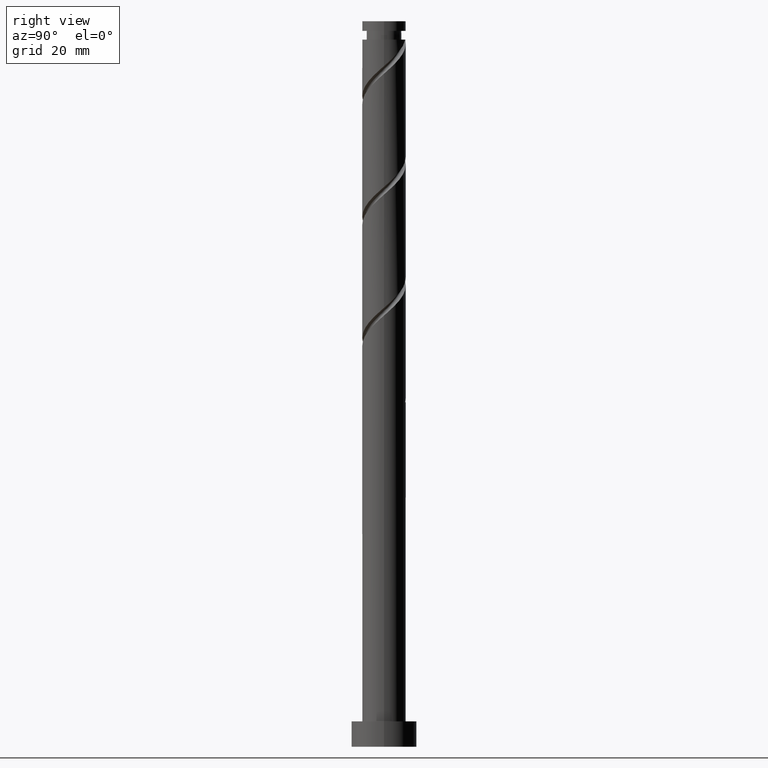
[diagram: clean part render]
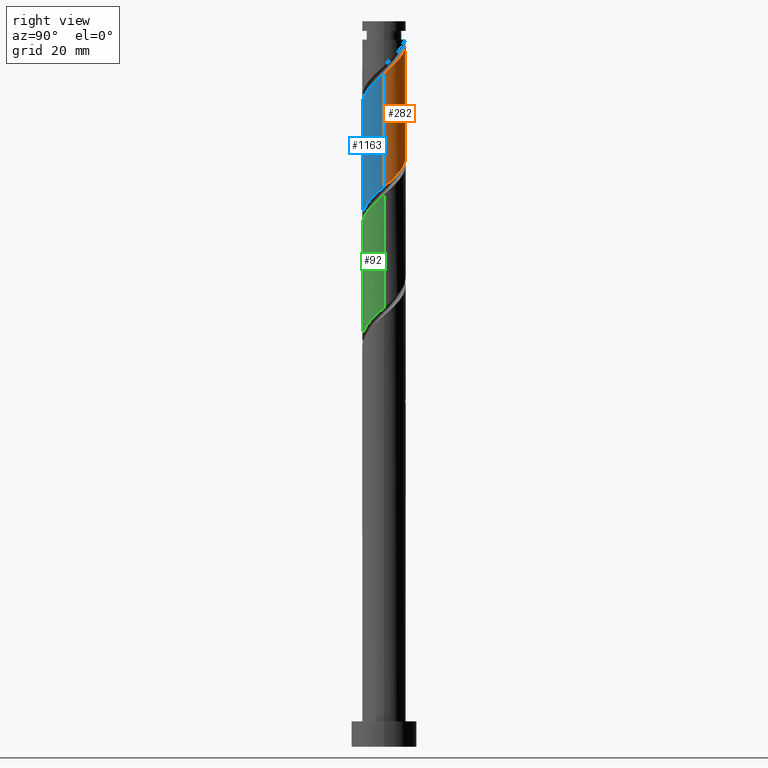
[diagram: same view with three faces highlighted in distinct colors, each labeled with its STEP entity id]
A machine part, right view with three faces highlighted in distinct colors.
Their STEP definitions:

[orange] entity #282 — the highlighted cylindrical surface (edge-blend (fillet) strip) has radius 6 mm, axis along (-0, -0, -1).
#13 = DIRECTION ( 'NONE',  ( -1.000000000000000000, 0.000000000000000000, 0.000000000000000000 ) ) ;
#48 = CARTESIAN_POINT ( 'NONE',  ( 5.370617820546605081, 2.675156860004169523, 187.9871779658099342 ) ) ;
#54 = CARTESIAN_POINT ( 'NONE',  ( 0.000000000000000000, 0.000000000000000000, 200.0000000000000000 ) ) ;
#56 = CARTESIAN_POINT ( 'NONE',  ( -1.193984924527897284, 5.879999999999955484, 194.9316224102543629 ) ) ;
#70 = CARTESIAN_POINT ( 'NONE',  ( 3.974021276376848988, 4.495236911988524930, 158.8205112991432770 ) ) ;
#75 =( BOUNDED_CURVE ( )  B_SPLINE_CURVE ( 2, ( #552, #433, #461, #715, #48, #990, #317, #560, #184, #1523, #576, #323, #308, #848, #56 ),
 .UNSPECIFIED., .F., .T. ) 
 B_SPLINE_CURVE_WITH_KNOTS ( ( 3, 2, 2, 2, 2, 2, 2, 3 ),
 ( 0.6795317669814462391, 0.6875000000000000000, 0.6979166666666667407, 0.7083333333333332593, 0.7187499999999998890, 0.7291666666666666297, 0.7395833333333331483, 0.7499999999999998890 ),
 .UNSPECIFIED. ) 
 CURVE ( )  GEOMETRIC_REPRESENTATION_ITEM ( )  RATIONAL_B_SPLINE_CURVE ( ( 0.9062941362546420576, 0.9031415850403462509, 0.9090909090909216062, 0.9013135103398400849, 0.9090909090909216062, 0.9013135103398400849, 0.9090909090909216062, 0.9013135103398400849, 0.9090909090909216062, 0.9013135103398400849, 0.9090909090909216062, 0.9013135103398400849, 0.9090909090909216062, 0.9013135103398400849, 0.9090909090909216062 ) ) 
 REPRESENTATION_ITEM ( '' )  );
#79 = CARTESIAN_POINT ( 'NONE',  ( 5.002062710145118274, 3.313513036608680462, 157.4316224102544197 ) ) ;
#184 = CARTESIAN_POINT ( 'NONE',  ( 3.313513036608688456, 5.002062710145122715, 190.7649557435876773 ) ) ;
#221 = CARTESIAN_POINT ( 'NONE',  ( 5.940148695829896575, 1.156978459517005176, 155.3482890769209916 ) ) ;
#229 = CARTESIAN_POINT ( 'NONE',  ( -5.722808902604195502, 1.968101610341833396, 169.2371779658099342 ) ) ;
#237 = CARTESIAN_POINT ( 'NONE',  ( 1.193984924527947022, 5.879999999999999005, 161.5982890769210485 ) ) ;
#248 = CARTESIAN_POINT ( 'NONE',  ( 6.000000000000009770, -2.003807115445096465E-15, 185.5347224217109670 ) ) ;
#282 = ADVANCED_FACE ( 'NONE', ( #313 ), #590, .T. ) ;
#308 = CARTESIAN_POINT ( 'NONE',  ( 0.3685551104014822554, 5.988669896612860200, 193.5427335213654771 ) ) ;
#313 = FACE_OUTER_BOUND ( 'NONE', #366, .T. ) ;
#317 = CARTESIAN_POINT ( 'NONE',  ( 4.495236911988538253, 3.974021276376848988, 189.3760668546988484 ) ) ;
#323 = CARTESIAN_POINT ( 'NONE',  ( 1.156978459517015612, 5.940148695829906345, 192.8482890769210485 ) ) ;
#333 = CARTESIAN_POINT ( 'NONE',  ( -5.018426738488988903, 3.382212109666502986, 167.8482890769209916 ) ) ;
#338 = CARTESIAN_POINT ( 'NONE',  ( -4.495236911988526707, 3.974021276376847212, 167.1538446324766198 ) ) ;
#359 = CARTESIAN_POINT ( 'NONE',  ( -1.193984924527897284, 5.879999999999955484, 194.9316224102543629 ) ) ;
#366 = EDGE_LOOP ( 'NONE', ( #1327, #1231, #1485, #790, #1320 ) ) ;
#386 = VECTOR ( 'NONE', #1216, 1000.000000000000000 ) ;
#433 = CARTESIAN_POINT ( 'NONE',  ( 6.000000000000010658, 0.6030226891555244828, 186.0681487909002385 ) ) ;
#461 = CARTESIAN_POINT ( 'NONE',  ( 5.880000000000010552, 1.193984924527945468, 186.5982890769210485 ) ) ;
#472 = CARTESIAN_POINT ( 'NONE',  ( -6.000000000000001776, -3.768353679792297574E-15, 170.9951890654644444 ) ) ;
#476 = CARTESIAN_POINT ( 'NONE',  ( -6.000000000000000888, 0.6030226891555308111, 170.4617626962751160 ) ) ;
#552 = CARTESIAN_POINT ( 'NONE',  ( 6.000000000000009770, -2.003807115445096465E-15, 185.5347224217109954 ) ) ;
#560 = CARTESIAN_POINT ( 'NONE',  ( 3.972047085488075169, 4.565830443087191881, 190.0705112991432770 ) ) ;
#564 = VERTEX_POINT ( 'NONE', #472 ) ;
#576 = CARTESIAN_POINT ( 'NONE',  ( 1.905978723623160231, 5.689221836516480835, 192.1538446324766198 ) ) ;
#581 = DIRECTION ( 'NONE',  ( -1.000000000000000000, 0.000000000000000000, 0.000000000000000000 ) ) ;
#585 = LINE ( 'NONE', #1658, #661 ) ;
#590 = CYLINDRICAL_SURFACE ( 'NONE', #1114, 6.000000000000000888 ) ;
#599 = CARTESIAN_POINT ( 'NONE',  ( 4.565830443087190105, 3.972047085488063178, 158.1260668546987915 ) ) ;
#610 = CARTESIAN_POINT ( 'NONE',  ( 5.438294977203047331, 2.654978987729293305, 156.7371779658098490 ) ) ;
#661 = VECTOR ( 'NONE', #1378, 1000.000000000000000 ) ;
#669 = CARTESIAN_POINT ( 'NONE',  ( 6.000000000000000888, 7.347880794884120722E-16, 200.0000000000000000 ) ) ;
#715 = CARTESIAN_POINT ( 'NONE',  ( 5.722808902604208825, 1.968101610341833396, 187.2927335213655056 ) ) ;
#726 = EDGE_CURVE ( 'NONE', #564, #1438, #1472, .T. ) ;
#733 = CARTESIAN_POINT ( 'NONE',  ( 3.382212109666506983, 5.018426738488987127, 159.5149557435876773 ) ) ;
#743 = CARTESIAN_POINT ( 'NONE',  ( -0.3685551104014755386, 5.988669896612849541, 162.9871779658099342 ) ) ;
#768 = EDGE_CURVE ( 'NONE', #770, #1335, #1565, .T. ) ;
#770 = VERTEX_POINT ( 'NONE', #1745 ) ;
#785 = CARTESIAN_POINT ( 'NONE',  ( 6.000000000000001776, 8.583472270638011185E-15, 154.3285223987978156 ) ) ;
#790 = ORIENTED_EDGE ( 'NONE', *, *, #1122, .F. ) ;
#848 = CARTESIAN_POINT ( 'NONE',  ( -0.4198682387140428296, 6.037191097395812278, 194.2371779658099342 ) ) ;
#865 = AXIS2_PLACEMENT_3D ( 'NONE', #926, #1199, #13 ) ;
#872 = EDGE_CURVE ( 'NONE', #922, #1438, #1360, .T. ) ;
#883 = CARTESIAN_POINT ( 'NONE',  ( -1.905978723623153348, 5.689221836516471953, 164.3760668546988200 ) ) ;
#895 = CARTESIAN_POINT ( 'NONE',  ( 5.689221836516475506, 1.905978723623149795, 156.0427335213655340 ) ) ;
#922 = VERTEX_POINT ( 'NONE', #248 ) ;
#926 = CARTESIAN_POINT ( 'NONE',  ( 0.000000000000000000, 0.000000000000000000, 194.9316224102543913 ) ) ;
#990 = CARTESIAN_POINT ( 'NONE',  ( 5.018426738489001337, 3.382212109666505206, 188.6816224102543345 ) ) ;
#1008 = CARTESIAN_POINT ( 'NONE',  ( 2.675156860004173520, 5.370617820546592647, 160.2094001880321628 ) ) ;
#1035 = CARTESIAN_POINT ( 'NONE',  ( -5.370617820546593535, 2.675156860004169967, 168.5427335213654771 ) ) ;
#1044 = CARTESIAN_POINT ( 'NONE',  ( -6.000000000000001776, -3.768353679792297574E-15, 170.9951890654644444 ) ) ;
#1090 = EDGE_CURVE ( 'NONE', #922, #1335, #75, .T. ) ;
#1114 = AXIS2_PLACEMENT_3D ( 'NONE', #54, #1669, #581 ) ;
#1122 = EDGE_CURVE ( 'NONE', #770, #564, #585, .T. ) ;
#1191 = CARTESIAN_POINT ( 'NONE',  ( 1.968101610341838503, 5.722808902604194614, 160.9038446324765630 ) ) ;
#1199 = DIRECTION ( 'NONE',  ( -0.000000000000000000, -0.000000000000000000, -1.000000000000000000 ) ) ;
#1216 = DIRECTION ( 'NONE',  ( -0.000000000000000000, -0.000000000000000000, -1.000000000000000000 ) ) ;
#1231 = ORIENTED_EDGE ( 'NONE', *, *, #872, .T. ) ;
#1294 = CARTESIAN_POINT ( 'NONE',  ( 0.4198682387140577621, 6.037191097395801620, 162.2927335213654487 ) ) ;
#1320 = ORIENTED_EDGE ( 'NONE', *, *, #768, .T. ) ;
#1327 = ORIENTED_EDGE ( 'NONE', *, *, #1090, .F. ) ;
#1335 = VERTEX_POINT ( 'NONE', #359 ) ;
#1360 = LINE ( 'NONE', #669, #386 ) ;
#1370 = CARTESIAN_POINT ( 'NONE',  ( 6.000000000000000888, 0.1844517099460428189, 154.4916860868259789 ) ) ;
#1378 = DIRECTION ( 'NONE',  ( -0.000000000000000000, -0.000000000000000000, -1.000000000000000000 ) ) ;
#1438 = VERTEX_POINT ( 'NONE', #785 ) ;
#1472 =( BOUNDED_CURVE ( )  B_SPLINE_CURVE ( 2, ( #1044, #476, #1578, #229, #1035, #333, #338, #1694, #1704, #1570, #883, #1550, #743, #1294, #237, #1191, #1008, #733, #70, #599, #79, #610, #895, #221, #1725, #1370, #1612 ),
 .UNSPECIFIED., .F., .T. ) 
 B_SPLINE_CURVE_WITH_KNOTS ( ( 3, 2, 2, 2, 2, 2, 2, 2, 2, 2, 2, 2, 2, 3 ),
 ( 0.4295317669814462946, 0.4375000000000000000, 0.4479166666666666852, 0.4583333333333333148, 0.4687500000000000000, 0.4791666666666666852, 0.4895833333333333148, 0.5000000000000000000, 0.5104166666666666297, 0.5208333333333333703, 0.5312500000000000000, 0.5416666666666666297, 0.5520833333333333703, 0.5545317669814462391 ),
 .UNSPECIFIED. ) 
 CURVE ( )  GEOMETRIC_REPRESENTATION_ITEM ( )  RATIONAL_B_SPLINE_CURVE ( ( 0.9062941362546359514, 0.9031415850403402557, 0.9090909090909153889, 0.9013135103398340897, 0.9090909090909153889, 0.9013135103398340897, 0.9090909090909153889, 0.9013135103398340897, 0.9090909090909153889, 0.9013135103398340897, 0.9090909090909153889, 0.9013135103398340897, 0.9090909090909153889, 0.9013135103398340897, 0.9090909090909153889, 0.9013135103398340897, 0.9090909090909153889, 0.9013135103398340897, 0.9090909090909153889, 0.9013135103398340897, 0.9090909090909153889, 0.9013135103398340897, 0.9090909090909153889, 0.9013135103398340897, 0.9090909090909153889, 0.9072628343904092230, 0.9062941362546358404 ) ) 
 REPRESENTATION_ITEM ( '' )  );
#1485 = ORIENTED_EDGE ( 'NONE', *, *, #726, .F. ) ;
#1523 = CARTESIAN_POINT ( 'NONE',  ( 2.654978987729306183, 5.438294977203054437, 191.4594001880321343 ) ) ;
#1550 = CARTESIAN_POINT ( 'NONE',  ( -1.156978459517009172, 5.940148695829896575, 163.6816224102543629 ) ) ;
#1565 = CIRCLE ( 'NONE', #865, 5.999999999999990230 ) ;
#1570 = CARTESIAN_POINT ( 'NONE',  ( -2.654978987729297302, 5.438294977203044667, 165.0705112991432770 ) ) ;
#1578 = CARTESIAN_POINT ( 'NONE',  ( -5.879999999999999005, 1.193984924527945912, 169.9316224102544197 ) ) ;
#1612 = CARTESIAN_POINT ( 'NONE',  ( 6.000000000000001776, 8.583472270638011185E-15, 154.3285223987978156 ) ) ;
#1658 = CARTESIAN_POINT ( 'NONE',  ( -6.000000000000000888, 0.000000000000000000, 200.0000000000000000 ) ) ;
#1669 = DIRECTION ( 'NONE',  ( -0.000000000000000000, -0.000000000000000000, -1.000000000000000000 ) ) ;
#1694 = CARTESIAN_POINT ( 'NONE',  ( -3.972047085488064511, 4.565830443087188328, 166.4594001880321343 ) ) ;
#1704 = CARTESIAN_POINT ( 'NONE',  ( -3.313513036608681794, 5.002062710145118274, 165.7649557435877341 ) ) ;
#1725 = CARTESIAN_POINT ( 'NONE',  ( 5.988669896612849541, 0.3685551104014728740, 154.6538446324766198 ) ) ;
#1745 = CARTESIAN_POINT ( 'NONE',  ( -5.999999999999990230, 0.000000000000000000, 194.9316224102543913 ) ) ;

[blue] entity #1163 — the highlighted cylindrical surface (edge-blend (fillet) strip) has radius 6 mm, axis along (-0, -0, -1).
#11 = LINE ( 'NONE', #959, #1742 ) ;
#22 = CARTESIAN_POINT ( 'NONE',  ( -6.000000000000001776, 6.609572724080141778E-15, 137.6618557321311300 ) ) ;
#25 = CARTESIAN_POINT ( 'NONE',  ( 3.974021276376850764, -4.495236911988536477, 181.0427335213655056 ) ) ;
#78 = CARTESIAN_POINT ( 'NONE',  ( 1.905978723623152016, -5.689221836516472841, 147.7094001880322196 ) ) ;
#86 = CARTESIAN_POINT ( 'NONE',  ( 1.156978459517005398, -5.940148695829896575, 147.0149557435876773 ) ) ;
#97 = CARTESIAN_POINT ( 'NONE',  ( -1.968101610341835617, -5.722808902604195502, 144.2371779658099058 ) ) ;
#195 = CARTESIAN_POINT ( 'NONE',  ( 3.382212109666505206, -5.018426738489001337, 180.3482890769209632 ) ) ;
#199 = CARTESIAN_POINT ( 'NONE',  ( -5.988669896612849541, -0.3685551104014749835, 137.9871779658099626 ) ) ;
#205 = CARTESIAN_POINT ( 'NONE',  ( 6.000000000000010658, -0.1844517099460451781, 185.3715587336828605 ) ) ;
#219 = CARTESIAN_POINT ( 'NONE',  ( 0.3685551104014730406, -5.988669896612849541, 146.3205112991431918 ) ) ;
#225 = ORIENTED_EDGE ( 'NONE', *, *, #1247, .F. ) ;
#228 = CARTESIAN_POINT ( 'NONE',  ( -5.689221836516471953, -1.905978723623152238, 139.3760668546987915 ) ) ;
#235 = CARTESIAN_POINT ( 'NONE',  ( -6.000000000000009770, -1.764546564347174682E-15, 168.8680557550443098 ) ) ;
#248 = CARTESIAN_POINT ( 'NONE',  ( 6.000000000000009770, -2.003807115445096465E-15, 185.5347224217109670 ) ) ;
#266 = CARTESIAN_POINT ( 'NONE',  ( -4.495236911988534700, -3.974021276376850764, 172.7094001880321912 ) ) ;
#284 = CARTESIAN_POINT ( 'NONE',  ( -1.905978723623160009, -5.689221836516481723, 175.4871779658099626 ) ) ;
#293 = CARTESIAN_POINT ( 'NONE',  ( 5.689221836516481723, -1.905978723623160231, 183.8205112991433055 ) ) ;
#302 = CARTESIAN_POINT ( 'NONE',  ( 2.675156860004169967, -5.370617820546605081, 179.6538446324765914 ) ) ;
#314 =( BOUNDED_CURVE ( )  B_SPLINE_CURVE ( 2, ( #691, #1614, #1728, #1057, #1334, #662, #266, #810, #1097, #1502, #284, #1201, #1068, #1604, #396, #405, #302, #195, #25, #974, #1652, #1511, #293, #839, #1037, #205, #351 ),
 .UNSPECIFIED., .F., .T. ) 
 B_SPLINE_CURVE_WITH_KNOTS ( ( 3, 2, 2, 2, 2, 2, 2, 2, 2, 2, 2, 2, 2, 3 ),
 ( 0.5545317669814462391, 0.5625000000000000000, 0.5729166666666667407, 0.5833333333333332593, 0.5937500000000000000, 0.6041666666666667407, 0.6145833333333332593, 0.6250000000000000000, 0.6354166666666667407, 0.6458333333333332593, 0.6562500000000000000, 0.6666666666666667407, 0.6770833333333332593, 0.6795317669814462391 ),
 .UNSPECIFIED. ) 
 CURVE ( )  GEOMETRIC_REPRESENTATION_ITEM ( )  RATIONAL_B_SPLINE_CURVE ( ( 0.9062941362546420576, 0.9031415850403462509, 0.9090909090909216062, 0.9013135103398400849, 0.9090909090909216062, 0.9013135103398400849, 0.9090909090909216062, 0.9013135103398400849, 0.9090909090909216062, 0.9013135103398400849, 0.9090909090909216062, 0.9013135103398400849, 0.9090909090909216062, 0.9013135103398400849, 0.9090909090909216062, 0.9013135103398400849, 0.9090909090909216062, 0.9013135103398400849, 0.9090909090909216062, 0.9013135103398400849, 0.9090909090909216062, 0.9013135103398400849, 0.9090909090909216062, 0.9013135103398400849, 0.9090909090909216062, 0.9072628343904154402, 0.9062941362546420576 ) ) 
 REPRESENTATION_ITEM ( '' )  );
#324 = AXIS2_PLACEMENT_3D ( 'NONE', #1135, #1667, #867 ) ;
#332 = CARTESIAN_POINT ( 'NONE',  ( 5.018426738488987127, -3.382212109666506095, 151.1816224102543345 ) ) ;
#351 = CARTESIAN_POINT ( 'NONE',  ( 6.000000000000009770, -2.003807115445096465E-15, 185.5347224217109954 ) ) ;
#386 = VECTOR ( 'NONE', #1216, 1000.000000000000000 ) ;
#396 = CARTESIAN_POINT ( 'NONE',  ( 1.193984924527945912, -5.880000000000010552, 178.2649557435877341 ) ) ;
#405 = CARTESIAN_POINT ( 'NONE',  ( 1.968101610341834062, -5.722808902604208825, 178.9594001880321628 ) ) ;
#427 = FACE_OUTER_BOUND ( 'NONE', #491, .T. ) ;
#468 = EDGE_CURVE ( 'NONE', #1642, #922, #314, .T. ) ;
#475 = CARTESIAN_POINT ( 'NONE',  ( 6.000000000000002665, -0.6030226891555243718, 153.7950960296085157 ) ) ;
#491 = EDGE_LOOP ( 'NONE', ( #940, #1077, #772, #225 ) ) ;
#608 = CARTESIAN_POINT ( 'NONE',  ( 5.879999999999999005, -1.193984924527946356, 153.2649557435877341 ) ) ;
#619 = CARTESIAN_POINT ( 'NONE',  ( -1.193984924527945912, -5.879999999999999005, 144.9316224102543913 ) ) ;
#662 = CARTESIAN_POINT ( 'NONE',  ( -5.018426738488997785, -3.382212109666507871, 172.0149557435877625 ) ) ;
#669 = CARTESIAN_POINT ( 'NONE',  ( 6.000000000000000888, 7.347880794884120722E-16, 200.0000000000000000 ) ) ;
#691 = CARTESIAN_POINT ( 'NONE',  ( -6.000000000000009770, -1.764546564347174682E-15, 168.8680557550443098 ) ) ;
#753 = CARTESIAN_POINT ( 'NONE',  ( 4.495236911988526707, -3.974021276376848988, 150.4871779658099342 ) ) ;
#772 = ORIENTED_EDGE ( 'NONE', *, *, #1607, .T. ) ;
#785 = CARTESIAN_POINT ( 'NONE',  ( 6.000000000000001776, 8.583472270638011185E-15, 154.3285223987978156 ) ) ;
#810 = CARTESIAN_POINT ( 'NONE',  ( -3.972047085488073392, -4.565830443087193657, 173.4038446324765914 ) ) ;
#839 = CARTESIAN_POINT ( 'NONE',  ( 5.940148695829906345, -1.156978459517015390, 184.5149557435877625 ) ) ;
#857 = CYLINDRICAL_SURFACE ( 'NONE', #324, 6.000000000000000888 ) ;
#867 = DIRECTION ( 'NONE',  ( -1.000000000000000000, 0.000000000000000000, 0.000000000000000000 ) ) ;
#872 = EDGE_CURVE ( 'NONE', #922, #1438, #1360, .T. ) ;
#882 = CARTESIAN_POINT ( 'NONE',  ( -3.382212109666503430, -5.018426738488988903, 142.8482890769209916 ) ) ;
#914 = CARTESIAN_POINT ( 'NONE',  ( 5.722808902604194614, -1.968101610341837615, 152.5705112991431918 ) ) ;
#922 = VERTEX_POINT ( 'NONE', #248 ) ;
#940 = ORIENTED_EDGE ( 'NONE', *, *, #872, .F. ) ;
#959 = CARTESIAN_POINT ( 'NONE',  ( -6.000000000000000888, 0.000000000000000000, 200.0000000000000000 ) ) ;
#974 = CARTESIAN_POINT ( 'NONE',  ( 4.565830443087193657, -3.972047085488073392, 181.7371779658099626 ) ) ;
#1007 = CARTESIAN_POINT ( 'NONE',  ( -5.002062710145118274, -3.313513036608681350, 140.7649557435877341 ) ) ;
#1012 = CARTESIAN_POINT ( 'NONE',  ( 2.654978987729295969, -5.438294977203045555, 148.4038446324765630 ) ) ;
#1030 = VERTEX_POINT ( 'NONE', #22 ) ;
#1037 = CARTESIAN_POINT ( 'NONE',  ( 5.988669896612860200, -0.3685551104014818669, 185.2094001880321343 ) ) ;
#1057 = CARTESIAN_POINT ( 'NONE',  ( -5.722808902604208825, -1.968101610341834284, 170.6260668546987915 ) ) ;
#1068 = CARTESIAN_POINT ( 'NONE',  ( -0.3685551104014787582, -5.988669896612860200, 176.8760668546988200 ) ) ;
#1077 = ORIENTED_EDGE ( 'NONE', *, *, #468, .F. ) ;
#1089 = DIRECTION ( 'NONE',  ( -0.000000000000000000, -0.000000000000000000, -1.000000000000000000 ) ) ;
#1097 = CARTESIAN_POINT ( 'NONE',  ( -3.313513036608688456, -5.002062710145124491, 174.0982890769210201 ) ) ;
#1135 = CARTESIAN_POINT ( 'NONE',  ( 0.000000000000000000, 0.000000000000000000, 200.0000000000000000 ) ) ;
#1142 = CARTESIAN_POINT ( 'NONE',  ( -6.000000000000001776, -0.1844517099460362408, 137.8250194201592933 ) ) ;
#1149 = CARTESIAN_POINT ( 'NONE',  ( 3.313513036608679130, -5.002062710145120050, 149.0982890769210485 ) ) ;
#1158 = CARTESIAN_POINT ( 'NONE',  ( 3.972047085488063178, -4.565830443087190105, 149.7927335213654203 ) ) ;
#1163 = ADVANCED_FACE ( 'NONE', ( #427 ), #857, .T. ) ;
#1168 = CARTESIAN_POINT ( 'NONE',  ( -2.675156860004170856, -5.370617820546593535, 143.5427335213654771 ) ) ;
#1201 = CARTESIAN_POINT ( 'NONE',  ( -1.156978459517012725, -5.940148695829906345, 176.1816224102544197 ) ) ;
#1216 = DIRECTION ( 'NONE',  ( -0.000000000000000000, -0.000000000000000000, -1.000000000000000000 ) ) ;
#1247 = EDGE_CURVE ( 'NONE', #1438, #1030, #1484, .T. ) ;
#1301 = CARTESIAN_POINT ( 'NONE',  ( 6.000000000000001776, 8.583472270638011185E-15, 154.3285223987978156 ) ) ;
#1334 = CARTESIAN_POINT ( 'NONE',  ( -5.370617820546604193, -2.675156860004169967, 171.3205112991432486 ) ) ;
#1360 = LINE ( 'NONE', #669, #386 ) ;
#1410 = CARTESIAN_POINT ( 'NONE',  ( -5.940148695829896575, -1.156978459517007174, 138.6816224102543345 ) ) ;
#1417 = CARTESIAN_POINT ( 'NONE',  ( -4.565830443087190105, -3.972047085488064067, 141.4594001880320775 ) ) ;
#1430 = CARTESIAN_POINT ( 'NONE',  ( -5.438294977203045555, -2.654978987729295969, 140.0705112991432486 ) ) ;
#1438 = VERTEX_POINT ( 'NONE', #785 ) ;
#1453 = CARTESIAN_POINT ( 'NONE',  ( -0.4198682387140594274, -6.037191097395804285, 145.6260668546987915 ) ) ;
#1484 =( BOUNDED_CURVE ( )  B_SPLINE_CURVE ( 2, ( #1301, #475, #608, #914, #1692, #332, #753, #1158, #1149, #1012, #78, #86, #219, #1453, #619, #97, #1168, #882, #1548, #1417, #1007, #1430, #228, #1410, #199, #1142, #1703 ),
 .UNSPECIFIED., .F., .T. ) 
 B_SPLINE_CURVE_WITH_KNOTS ( ( 3, 2, 2, 2, 2, 2, 2, 2, 2, 2, 2, 2, 2, 3 ),
 ( 0.5545317669814462391, 0.5625000000000000000, 0.5729166666666666297, 0.5833333333333333703, 0.5937500000000000000, 0.6041666666666666297, 0.6145833333333333703, 0.6250000000000000000, 0.6354166666666666297, 0.6458333333333333703, 0.6562500000000000000, 0.6666666666666666297, 0.6770833333333333703, 0.6795317669814463502 ),
 .UNSPECIFIED. ) 
 CURVE ( )  GEOMETRIC_REPRESENTATION_ITEM ( )  RATIONAL_B_SPLINE_CURVE ( ( 0.9062941362546358404, 0.9031415850403401446, 0.9090909090909153889, 0.9013135103398340897, 0.9090909090909153889, 0.9013135103398340897, 0.9090909090909153889, 0.9013135103398340897, 0.9090909090909153889, 0.9013135103398340897, 0.9090909090909153889, 0.9013135103398340897, 0.9090909090909153889, 0.9013135103398340897, 0.9090909090909153889, 0.9013135103398340897, 0.9090909090909153889, 0.9013135103398340897, 0.9090909090909153889, 0.9013135103398340897, 0.9090909090909153889, 0.9013135103398340897, 0.9090909090909153889, 0.9013135103398340897, 0.9090909090909153889, 0.9072628343904091119, 0.9062941362546357293 ) ) 
 REPRESENTATION_ITEM ( '' )  );
#1502 = CARTESIAN_POINT ( 'NONE',  ( -2.654978987729304407, -5.438294977203055325, 174.7927335213655056 ) ) ;
#1511 = CARTESIAN_POINT ( 'NONE',  ( 5.438294977203054437, -2.654978987729305295, 183.1260668546987915 ) ) ;
#1548 = CARTESIAN_POINT ( 'NONE',  ( -3.974021276376848988, -4.495236911988526707, 142.1538446324765914 ) ) ;
#1604 = CARTESIAN_POINT ( 'NONE',  ( 0.4198682387140550976, -6.037191097395812278, 177.5705112991432770 ) ) ;
#1607 = EDGE_CURVE ( 'NONE', #1642, #1030, #11, .T. ) ;
#1614 = CARTESIAN_POINT ( 'NONE',  ( -6.000000000000010658, -0.6030226891555283686, 169.4014821242336097 ) ) ;
#1642 = VERTEX_POINT ( 'NONE', #235 ) ;
#1652 = CARTESIAN_POINT ( 'NONE',  ( 5.002062710145122715, -3.313513036608690232, 182.4316224102543345 ) ) ;
#1667 = DIRECTION ( 'NONE',  ( -0.000000000000000000, -0.000000000000000000, -1.000000000000000000 ) ) ;
#1692 = CARTESIAN_POINT ( 'NONE',  ( 5.370617820546592647, -2.675156860004172632, 151.8760668546988200 ) ) ;
#1703 = CARTESIAN_POINT ( 'NONE',  ( -6.000000000000001776, 6.609572724080141778E-15, 137.6618557321311300 ) ) ;
#1728 = CARTESIAN_POINT ( 'NONE',  ( -5.880000000000010552, -1.193984924527946134, 169.9316224102544766 ) ) ;
#1742 = VECTOR ( 'NONE', #1089, 1000.000000000000000 ) ;

[green] entity #92 — the highlighted cylindrical surface (edge-blend (fillet) strip) has radius 6 mm, axis along (-0, -0, -1).
#4 = CARTESIAN_POINT ( 'NONE',  ( -6.000000000000010658, -0.6030226891555302560, 136.0681487909002954 ) ) ;
#89 =( BOUNDED_CURVE ( )  B_SPLINE_CURVE ( 2, ( #1594, #4, #1084, #402, #688, #947, #1585, #648, #143, #1473, #1482, #1054, #263, #1331, #678, #1351, #393, #256, #137, #544, #1092, #419, #383, #961, #117, #1499, #280 ),
 .UNSPECIFIED., .F., .T. ) 
 B_SPLINE_CURVE_WITH_KNOTS ( ( 3, 2, 2, 2, 2, 2, 2, 2, 2, 2, 2, 2, 2, 3 ),
 ( 0.3045317669814463502, 0.3125000000000000000, 0.3229166666666666297, 0.3333333333333333703, 0.3437500000000000000, 0.3541666666666666297, 0.3645833333333333703, 0.3750000000000000000, 0.3854166666666666297, 0.3958333333333333703, 0.4062500000000000000, 0.4166666666666666297, 0.4270833333333333703, 0.4295317669814462946 ),
 .UNSPECIFIED. ) 
 CURVE ( )  GEOMETRIC_REPRESENTATION_ITEM ( )  RATIONAL_B_SPLINE_CURVE ( ( 0.9062941362546419466, 0.9031415850403463619, 0.9090909090909216062, 0.9013135103398400849, 0.9090909090909216062, 0.9013135103398400849, 0.9090909090909216062, 0.9013135103398400849, 0.9090909090909216062, 0.9013135103398400849, 0.9090909090909216062, 0.9013135103398400849, 0.9090909090909216062, 0.9013135103398400849, 0.9090909090909216062, 0.9013135103398400849, 0.9090909090909216062, 0.9013135103398400849, 0.9090909090909216062, 0.9013135103398400849, 0.9090909090909216062, 0.9013135103398400849, 0.9090909090909216062, 0.9013135103398400849, 0.9090909090909216062, 0.9072628343904154402, 0.9062941362546419466 ) ) 
 REPRESENTATION_ITEM ( '' )  );
#92 = ADVANCED_FACE ( 'NONE', ( #132 ), #666, .T. ) ;
#112 = CARTESIAN_POINT ( 'NONE',  ( 3.972047085488063178, -4.565830443087190105, 116.4594001880321485 ) ) ;
#117 = CARTESIAN_POINT ( 'NONE',  ( 5.988669896612860200, -0.3685551104014818669, 151.8760668546988200 ) ) ;
#120 = VERTEX_POINT ( 'NONE', #1608 ) ;
#125 = CARTESIAN_POINT ( 'NONE',  ( -6.000000000000000888, 0.000000000000000000, 200.0000000000000000 ) ) ;
#132 = FACE_OUTER_BOUND ( 'NONE', #1503, .T. ) ;
#137 = CARTESIAN_POINT ( 'NONE',  ( 3.974021276376850764, -4.495236911988536477, 147.7094001880322196 ) ) ;
#143 = CARTESIAN_POINT ( 'NONE',  ( -3.313513036608688456, -5.002062710145124491, 140.7649557435876773 ) ) ;
#207 = CARTESIAN_POINT ( 'NONE',  ( -4.565830443087190105, -3.972047085488064067, 108.1260668546987631 ) ) ;
#208 = ORIENTED_EDGE ( 'NONE', *, *, #1459, .T. ) ;
#224 = CARTESIAN_POINT ( 'NONE',  ( -0.4198682387140594274, -6.037191097395804285, 112.2927335213654914 ) ) ;
#256 = CARTESIAN_POINT ( 'NONE',  ( 3.382212109666505206, -5.018426738489001337, 147.0149557435877057 ) ) ;
#263 = CARTESIAN_POINT ( 'NONE',  ( -0.3685551104014787582, -5.988669896612860200, 143.5427335213654771 ) ) ;
#280 = CARTESIAN_POINT ( 'NONE',  ( 6.000000000000011546, -5.981513777448050751E-17, 152.2013890883776526 ) ) ;
#334 = CARTESIAN_POINT ( 'NONE',  ( 2.654978987729295969, -5.438294977203045555, 115.0705112991432486 ) ) ;
#354 = VECTOR ( 'NONE', #793, 1000.000000000000000 ) ;
#355 = CARTESIAN_POINT ( 'NONE',  ( -5.438294977203045555, -2.654978987729295969, 106.7371779658098916 ) ) ;
#365 = CARTESIAN_POINT ( 'NONE',  ( 5.722808902604194614, -1.968101610341837615, 119.2371779658099200 ) ) ;
#376 = LINE ( 'NONE', #919, #1620 ) ;
#383 = CARTESIAN_POINT ( 'NONE',  ( 5.689221836516481723, -1.905978723623160231, 150.4871779658099626 ) ) ;
#393 = CARTESIAN_POINT ( 'NONE',  ( 2.675156860004169967, -5.370617820546605081, 146.3205112991432486 ) ) ;
#402 = CARTESIAN_POINT ( 'NONE',  ( -5.722808902604208825, -1.968101610341834284, 137.2927335213655056 ) ) ;
#409 = EDGE_CURVE ( 'NONE', #800, #120, #558, .T. ) ;
#419 = CARTESIAN_POINT ( 'NONE',  ( 5.438294977203054437, -2.654978987729305295, 149.7927335213654487 ) ) ;
#462 = EDGE_CURVE ( 'NONE', #1015, #800, #376, .T. ) ;
#498 = CARTESIAN_POINT ( 'NONE',  ( -5.002062710145118274, -3.313513036608681350, 107.4316224102543771 ) ) ;
#544 = CARTESIAN_POINT ( 'NONE',  ( 4.565830443087193657, -3.972047085488073392, 148.4038446324766198 ) ) ;
#558 =( BOUNDED_CURVE ( )  B_SPLINE_CURVE ( 2, ( #1698, #1563, #1449, #365, #1027, #1423, #1546, #112, #769, #334, #879, #1287, #615, #224, #756, #1317, #1460, #1172, #887, #207, #498, #355, #899, #1437, #1307, #633, #1718 ),
 .UNSPECIFIED., .F., .T. ) 
 B_SPLINE_CURVE_WITH_KNOTS ( ( 3, 2, 2, 2, 2, 2, 2, 2, 2, 2, 2, 2, 2, 3 ),
 ( 0.8045317669814462391, 0.8125000000000000000, 0.8229166666666666297, 0.8333333333333333703, 0.8437500000000000000, 0.8541666666666666297, 0.8645833333333333703, 0.8750000000000000000, 0.8854166666666666297, 0.8958333333333333703, 0.9062500000000000000, 0.9166666666666666297, 0.9270833333333333703, 0.9295317669814463502 ),
 .UNSPECIFIED. ) 
 CURVE ( )  GEOMETRIC_REPRESENTATION_ITEM ( )  RATIONAL_B_SPLINE_CURVE ( ( 0.9062941362546358404, 0.9031415850403401446, 0.9090909090909153889, 0.9013135103398340897, 0.9090909090909153889, 0.9013135103398340897, 0.9090909090909153889, 0.9013135103398340897, 0.9090909090909153889, 0.9013135103398340897, 0.9090909090909153889, 0.9013135103398340897, 0.9090909090909153889, 0.9013135103398340897, 0.9090909090909153889, 0.9013135103398340897, 0.9090909090909153889, 0.9013135103398340897, 0.9090909090909153889, 0.9013135103398340897, 0.9090909090909153889, 0.9013135103398340897, 0.9090909090909153889, 0.9013135103398340897, 0.9090909090909153889, 0.9072628343904091119, 0.9062941362546357293 ) ) 
 REPRESENTATION_ITEM ( '' )  );
#615 = CARTESIAN_POINT ( 'NONE',  ( 0.3685551104014730406, -5.988669896612849541, 112.9871779658099200 ) ) ;
#633 = CARTESIAN_POINT ( 'NONE',  ( -6.000000000000001776, -0.1844517099460362408, 104.4916860868259221 ) ) ;
#648 = CARTESIAN_POINT ( 'NONE',  ( -3.972047085488073392, -4.565830443087193657, 140.0705112991432486 ) ) ;
#666 = CYLINDRICAL_SURFACE ( 'NONE', #853, 6.000000000000000888 ) ;
#678 = CARTESIAN_POINT ( 'NONE',  ( 1.193984924527945912, -5.880000000000010552, 144.9316224102543913 ) ) ;
#688 = CARTESIAN_POINT ( 'NONE',  ( -5.370617820546604193, -2.675156860004169967, 137.9871779658099626 ) ) ;
#751 = ORIENTED_EDGE ( 'NONE', *, *, #462, .F. ) ;
#756 = CARTESIAN_POINT ( 'NONE',  ( -1.193984924527945912, -5.879999999999999005, 111.5982890769210343 ) ) ;
#769 = CARTESIAN_POINT ( 'NONE',  ( 3.313513036608679130, -5.002062710145120050, 115.7649557435877341 ) ) ;
#793 = DIRECTION ( 'NONE',  ( -0.000000000000000000, -0.000000000000000000, -1.000000000000000000 ) ) ;
#800 = VERTEX_POINT ( 'NONE', #1622 ) ;
#853 = AXIS2_PLACEMENT_3D ( 'NONE', #1214, #1080, #1088 ) ;
#879 = CARTESIAN_POINT ( 'NONE',  ( 1.905978723623152016, -5.689221836516472841, 114.3760668546988342 ) ) ;
#887 = CARTESIAN_POINT ( 'NONE',  ( -3.974021276376848988, -4.495236911988526707, 108.8205112991432770 ) ) ;
#893 = CARTESIAN_POINT ( 'NONE',  ( -6.000000000000011546, -3.828168817566752480E-15, 135.5347224217109954 ) ) ;
#899 = CARTESIAN_POINT ( 'NONE',  ( -5.689221836516471953, -1.905978723623152238, 106.0427335213655056 ) ) ;
#906 = EDGE_CURVE ( 'NONE', #1298, #1015, #89, .T. ) ;
#919 = CARTESIAN_POINT ( 'NONE',  ( 6.000000000000000888, 7.347880794884120722E-16, 200.0000000000000000 ) ) ;
#947 = CARTESIAN_POINT ( 'NONE',  ( -5.018426738488997785, -3.382212109666507871, 138.6816224102544197 ) ) ;
#961 = CARTESIAN_POINT ( 'NONE',  ( 5.940148695829906345, -1.156978459517015390, 151.1816224102543629 ) ) ;
#1015 = VERTEX_POINT ( 'NONE', #1647 ) ;
#1027 = CARTESIAN_POINT ( 'NONE',  ( 5.370617820546592647, -2.675156860004172632, 118.5427335213654914 ) ) ;
#1054 = CARTESIAN_POINT ( 'NONE',  ( -1.156978459517012725, -5.940148695829906345, 142.8482890769210201 ) ) ;
#1069 = ORIENTED_EDGE ( 'NONE', *, *, #906, .F. ) ;
#1080 = DIRECTION ( 'NONE',  ( -0.000000000000000000, -0.000000000000000000, -1.000000000000000000 ) ) ;
#1084 = CARTESIAN_POINT ( 'NONE',  ( -5.880000000000010552, -1.193984924527946134, 136.5982890769210769 ) ) ;
#1086 = DIRECTION ( 'NONE',  ( -0.000000000000000000, -0.000000000000000000, -1.000000000000000000 ) ) ;
#1088 = DIRECTION ( 'NONE',  ( -1.000000000000000000, 0.000000000000000000, 0.000000000000000000 ) ) ;
#1092 = CARTESIAN_POINT ( 'NONE',  ( 5.002062710145122715, -3.313513036608690232, 149.0982890769209632 ) ) ;
#1172 = CARTESIAN_POINT ( 'NONE',  ( -3.382212109666503430, -5.018426738488988903, 109.5149557435876773 ) ) ;
#1173 = ORIENTED_EDGE ( 'NONE', *, *, #409, .F. ) ;
#1214 = CARTESIAN_POINT ( 'NONE',  ( 0.000000000000000000, 0.000000000000000000, 200.0000000000000000 ) ) ;
#1287 = CARTESIAN_POINT ( 'NONE',  ( 1.156978459517005398, -5.940148695829896575, 113.6816224102543487 ) ) ;
#1298 = VERTEX_POINT ( 'NONE', #893 ) ;
#1307 = CARTESIAN_POINT ( 'NONE',  ( -5.988669896612849541, -0.3685551104014749835, 104.6538446324766056 ) ) ;
#1317 = CARTESIAN_POINT ( 'NONE',  ( -1.968101610341835617, -5.722808902604195502, 110.9038446324765772 ) ) ;
#1331 = CARTESIAN_POINT ( 'NONE',  ( 0.4198682387140550976, -6.037191097395812278, 144.2371779658099058 ) ) ;
#1351 = CARTESIAN_POINT ( 'NONE',  ( 1.968101610341834062, -5.722808902604208825, 145.6260668546988200 ) ) ;
#1358 = LINE ( 'NONE', #125, #354 ) ;
#1423 = CARTESIAN_POINT ( 'NONE',  ( 5.018426738488987127, -3.382212109666506095, 117.8482890769210201 ) ) ;
#1437 = CARTESIAN_POINT ( 'NONE',  ( -5.940148695829896575, -1.156978459517007174, 105.3482890769210201 ) ) ;
#1449 = CARTESIAN_POINT ( 'NONE',  ( 5.879999999999999005, -1.193984924527946356, 119.9316224102544055 ) ) ;
#1459 = EDGE_CURVE ( 'NONE', #1298, #120, #1358, .T. ) ;
#1460 = CARTESIAN_POINT ( 'NONE',  ( -2.675156860004170856, -5.370617820546593535, 110.2094001880321770 ) ) ;
#1473 = CARTESIAN_POINT ( 'NONE',  ( -2.654978987729304407, -5.438294977203055325, 141.4594001880321343 ) ) ;
#1482 = CARTESIAN_POINT ( 'NONE',  ( -1.905978723623160009, -5.689221836516481723, 142.1538446324765914 ) ) ;
#1499 = CARTESIAN_POINT ( 'NONE',  ( 6.000000000000008882, -0.1844517099460473986, 152.0382254003494324 ) ) ;
#1503 = EDGE_LOOP ( 'NONE', ( #751, #1069, #208, #1173 ) ) ;
#1546 = CARTESIAN_POINT ( 'NONE',  ( 4.495236911988526707, -3.974021276376848988, 117.1538446324766056 ) ) ;
#1563 = CARTESIAN_POINT ( 'NONE',  ( 6.000000000000002665, -0.6030226891555243718, 120.4617626962751586 ) ) ;
#1585 = CARTESIAN_POINT ( 'NONE',  ( -4.495236911988534700, -3.974021276376850764, 139.3760668546988200 ) ) ;
#1594 = CARTESIAN_POINT ( 'NONE',  ( -6.000000000000011546, -3.828168817566752480E-15, 135.5347224217109954 ) ) ;
#1608 = CARTESIAN_POINT ( 'NONE',  ( -6.000000000000001776, 6.609572724080141778E-15, 104.3285223987977588 ) ) ;
#1620 = VECTOR ( 'NONE', #1086, 1000.000000000000000 ) ;
#1622 = CARTESIAN_POINT ( 'NONE',  ( 6.000000000000001776, 8.583472270638011185E-15, 120.9951890654644586 ) ) ;
#1647 = CARTESIAN_POINT ( 'NONE',  ( 6.000000000000011546, -5.981513777448050751E-17, 152.2013890883776241 ) ) ;
#1698 = CARTESIAN_POINT ( 'NONE',  ( 6.000000000000001776, 8.583472270638011185E-15, 120.9951890654644586 ) ) ;
#1718 = CARTESIAN_POINT ( 'NONE',  ( -6.000000000000001776, 6.609572724080141778E-15, 104.3285223987977588 ) ) ;